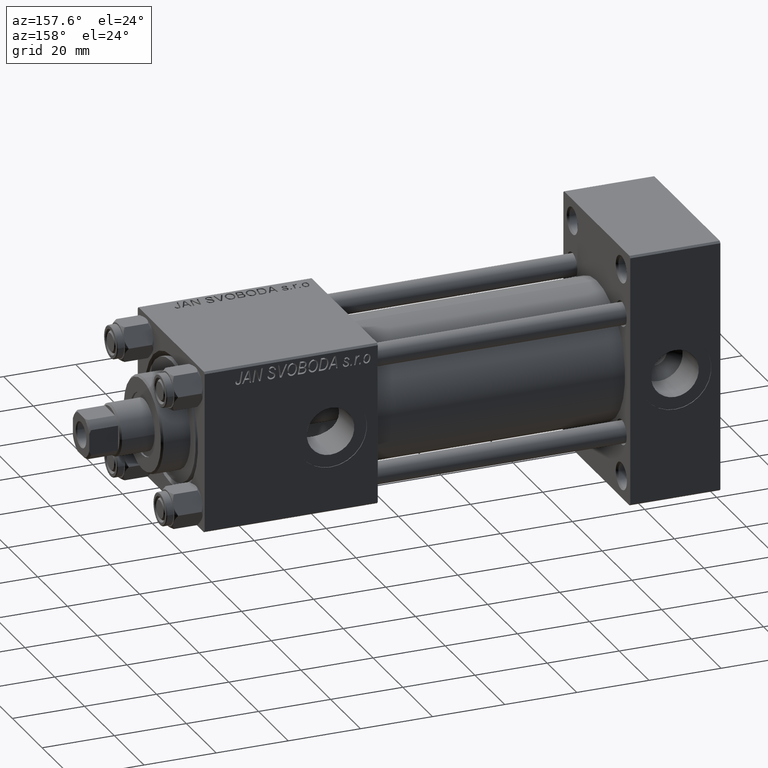
[diagram: clean part render]
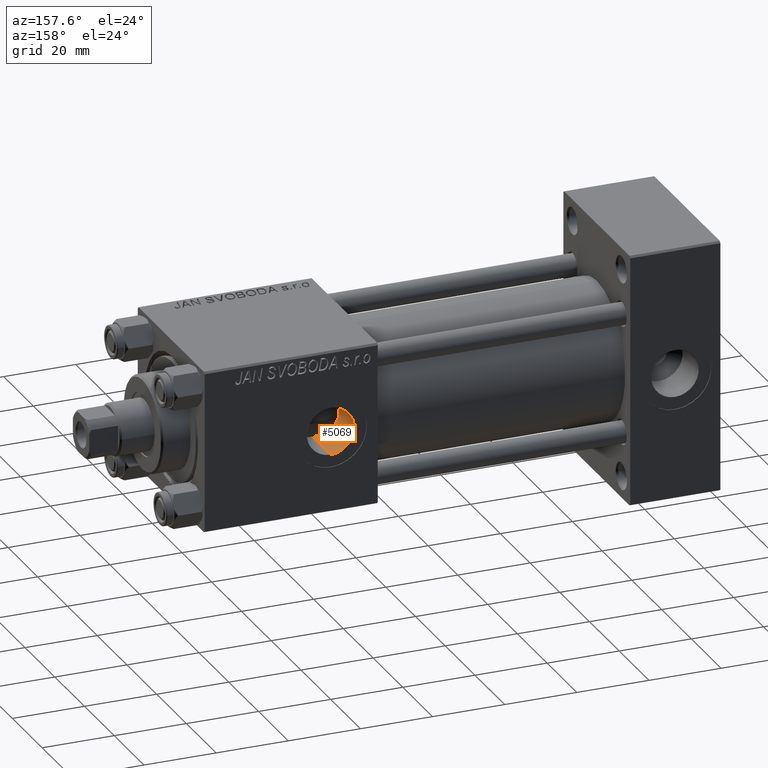
[diagram: same view with one face highlighted and labeled with its STEP entity id]
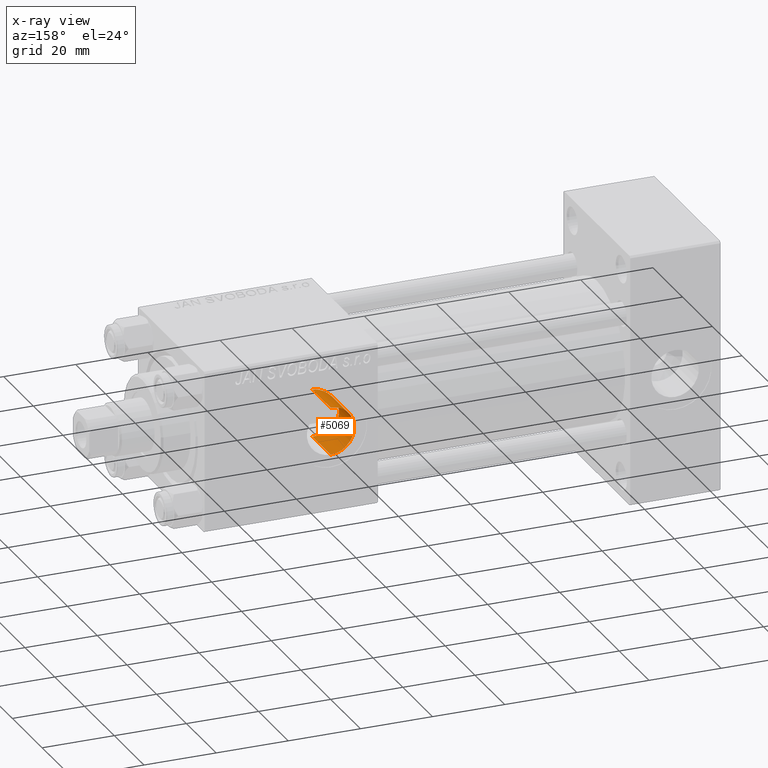
[diagram: x-ray of the same camera — body ghosted, the highlighted face saturated]
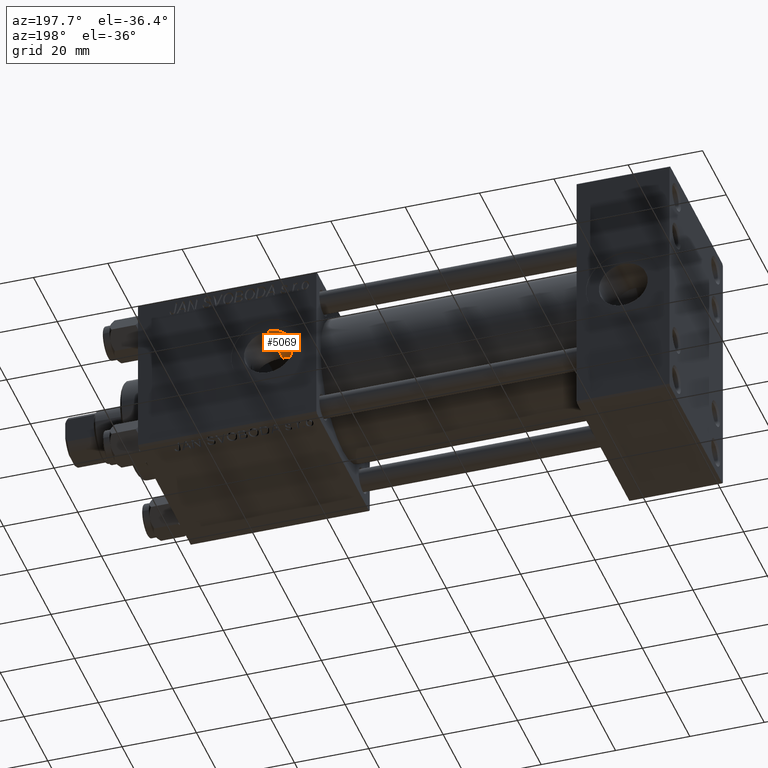
[diagram: same view with one face highlighted and labeled with its STEP entity id]
A machine part, auxiliary view. The second image highlights one B-rep face of the part: STEP entity #5069.
The next image is the same camera in x-ray: the body ghosted, the highlighted face saturated — about 0% of this face is hidden behind the body in this view.
A second angle (auxiliary view) of the same face is appended — the face is thin or edge-on in the first view.
In plain terms, the highlighted cylindrical surface (edge-blend (fillet) strip) has radius 6.58 mm, axis along (0, 1, 0).
Its self-contained STEP definition (entity closure, byte-faithful):
#1554 = LINE ( 'NONE', #16983, #33568 ) ;
#3036 = CARTESIAN_POINT ( 'NONE',  ( 103.9790530252927425, 10.80966661710888133, -5.212788743056521845 ) ) ;
#3276 = CARTESIAN_POINT ( 'NONE',  ( 105.0510431280197707, 10.45235325324470388, -5.897951781794918524 ) ) ;
#3513 = CARTESIAN_POINT ( 'NONE',  ( 102.3033527628750932, 11.53738015798572114, -3.320885605816854103 ) ) ;
#3527 = B_SPLINE_CURVE_WITH_KNOTS ( 'NONE', 3,
 ( #30811, #46185, #14642, #26287, #11333, #19425, #30070, #45452, #18928, #3276, #7560, #22729, #3036, #22977, #7314, #38142, #18681, #3513, #34353, #34104, #49742, #22491, #26768, #15140, #30569, #11581, #27022, #38391, #41684, #7813, #3760, #18442, #45697, #11094, #19173, #7073, #34602, #4009, #45937, #37900, #49494, #26526, #38634, #33296 ),
 .UNSPECIFIED., .F., .F.,
 ( 4, 2, 2, 2, 2, 2, 2, 2, 2, 2, 2, 2, 2, 2, 2, 2, 2, 2, 2, 2, 2, 4 ),
 ( 0.008590357070326631525, 0.009245933823934588541, 0.009901510577542547292, 0.01055708733115050431, 0.01121266408475846132, 0.01252381759197441352, 0.01317939434558237401, 0.01383497109919033449, 0.01514612460640625199, 0.01645727811362217297, 0.01711285486723013172, 0.01776843162083809047, 0.01907958512805401491, 0.02039073863526993241, 0.02170189214248585338, 0.02301304564970177435, 0.02432419915691769186, 0.02563535266413361630, 0.02629092941774158892, 0.02694650617134956155, 0.02825765967856552069, 0.02956881318578147289 ),
 .UNSPECIFIED. ) ;
#3760 = CARTESIAN_POINT ( 'NONE',  ( 102.3095047893206697, 11.53436838845257917, 3.330952691599677884 ) ) ;
#4009 = CARTESIAN_POINT ( 'NONE',  ( 105.0690707820880618, 10.45284026323419191, 5.895033264191283706 ) ) ;
#5069 = ADVANCED_FACE ( 'NONE', ( #9681 ), #25097, .F. ) ;
#5418 = CARTESIAN_POINT ( 'NONE',  ( 108.0000000000000000, 22.30000000000000426, 0.000000000000000000 ) ) ;
#5976 = VERTEX_POINT ( 'NONE', #13403 ) ;
#7073 = CARTESIAN_POINT ( 'NONE',  ( 104.5099310316933554, 10.62340520694157497, 5.582197786858912103 ) ) ;
#7314 = CARTESIAN_POINT ( 'NONE',  ( 103.4966336964842952, 10.99844243115061460, -4.802106935643950081 ) ) ;
#7533 = ORIENTED_EDGE ( 'NONE', *, *, #40405, .F. ) ;
#7560 = CARTESIAN_POINT ( 'NONE',  ( 104.6778844470711789, 10.56555453414760493, -5.695588259402676101 ) ) ;
#7769 = LINE ( 'NONE', #27476, #35109 ) ;
#7813 = CARTESIAN_POINT ( 'NONE',  ( 102.1050680583519039, 11.63756389590208862, 2.955633420251075894 ) ) ;
#9681 = FACE_OUTER_BOUND ( 'NONE', #34415, .T. ) ;
#11094 = CARTESIAN_POINT ( 'NONE',  ( 103.6562621565031890, 10.93152481304933765, 4.960425101894940347 ) ) ;
#11333 = CARTESIAN_POINT ( 'NONE',  ( 106.9026555007573904, 10.09272257990949839, -6.491501553408994596 ) ) ;
#11581 = CARTESIAN_POINT ( 'NONE',  ( 101.4197906521533241, 12.00011479239335088, 0.4352007943146000701 ) ) ;
#12428 = ORIENTED_EDGE ( 'NONE', *, *, #41667, .T. ) ;
#13403 = CARTESIAN_POINT ( 'NONE',  ( 108.0000000000000000, 22.30000000000000426, 6.580000000000002736 ) ) ;
#13989 = DIRECTION ( 'NONE',  ( 0.000000000000000000, 1.000000000000000000, 0.000000000000000000 ) ) ;
#14642 = CARTESIAN_POINT ( 'NONE',  ( 107.5587345323282449, 10.04242014431498475, -6.568903955922261062 ) ) ;
#15140 = CARTESIAN_POINT ( 'NONE',  ( 101.4637862416631293, 11.97582117318680162, -0.8761294634005413196 ) ) ;
#15582 = DIRECTION ( 'NONE',  ( -0.000000000000000000, 1.000000000000000000, -0.000000000000000000 ) ) ;
#16983 = CARTESIAN_POINT ( 'NONE',  ( 108.0000000000000000, -18.61105048082993818, 6.580000000000002736 ) ) ;
#17518 = DIRECTION ( 'NONE',  ( -0.000000000000000000, 1.000000000000000000, -0.000000000000000000 ) ) ;
#18442 = CARTESIAN_POINT ( 'NONE',  ( 102.7852272363605977, 11.30724428648134428, 4.035235631291475222 ) ) ;
#18681 = CARTESIAN_POINT ( 'NONE',  ( 102.7822453497095125, 11.30859472950852584, -4.031762314489304444 ) ) ;
#18835 = EDGE_CURVE ( 'NONE', #48883, #5976, #34173, .T. ) ;
#18928 = CARTESIAN_POINT ( 'NONE',  ( 105.6469863642564491, 10.30549409996672239, -6.148672400876415089 ) ) ;
#19173 = CARTESIAN_POINT ( 'NONE',  ( 103.9808194095023595, 10.80498217344098855, 5.227144681522187142 ) ) ;
#19425 = CARTESIAN_POINT ( 'NONE',  ( 106.4761413384147914, 10.14795690498758773, -6.404811640278047058 ) ) ;
#21593 = DIRECTION ( 'NONE',  ( 0.000000000000000000, 0.000000000000000000, 1.000000000000000000 ) ) ;
#22491 = CARTESIAN_POINT ( 'NONE',  ( 101.6495807290173019, 11.87554090734247758, -1.736573327823575985 ) ) ;
#22729 = CARTESIAN_POINT ( 'NONE',  ( 104.1502487701440600, 10.74694874131891353, -5.340483106436813898 ) ) ;
#22760 = VERTEX_POINT ( 'NONE', #44982 ) ;
#22818 = ORIENTED_EDGE ( 'NONE', *, *, #18835, .T. ) ;
#22977 = CARTESIAN_POINT ( 'NONE',  ( 103.6524179147616991, 10.93537140601615576, -4.943653615015846547 ) ) ;
#24891 = ORIENTED_EDGE ( 'NONE', *, *, #32196, .F. ) ;
#24984 = CARTESIAN_POINT ( 'NONE',  ( 108.0000000000000000, 22.30000000000000426, -6.580000000000002736 ) ) ;
#25097 = CYLINDRICAL_SURFACE ( 'NONE', #26580, 6.580000000000002736 ) ;
#26287 = CARTESIAN_POINT ( 'NONE',  ( 107.1190907691257337, 10.07132008303893400, -6.524508665183240907 ) ) ;
#26526 = CARTESIAN_POINT ( 'NONE',  ( 107.1257057613068895, 10.06401201544136903, 6.536546467569312568 ) ) ;
#26580 = AXIS2_PLACEMENT_3D ( 'NONE', #40506, #17518, #48318 ) ;
#26768 = CARTESIAN_POINT ( 'NONE',  ( 101.5947815601323043, 11.90500205299394310, -1.522465113034440432 ) ) ;
#27022 = CARTESIAN_POINT ( 'NONE',  ( 101.4646913180390442, 11.97532927873728958, 0.8814389111818397016 ) ) ;
#27476 = CARTESIAN_POINT ( 'NONE',  ( 108.0000000000000000, -18.61105048082993818, -6.580000000000002736 ) ) ;
#30070 = CARTESIAN_POINT ( 'NONE',  ( 106.2660629811777540, 10.18178878898818596, -6.351126472267992540 ) ) ;
#30569 = CARTESIAN_POINT ( 'NONE',  ( 101.4202108594641345, 11.99988437873642511, -0.4415083905740621595 ) ) ;
#30811 = CARTESIAN_POINT ( 'NONE',  ( 108.0000000000000000, 10.03511833512689755, -6.580000000000002736 ) ) ;
#32196 = EDGE_CURVE ( 'NONE', #37395, #22760, #3527, .T. ) ;
#33296 = CARTESIAN_POINT ( 'NONE',  ( 108.0000000000000000, 10.03511833512689755, 6.580000000000002736 ) ) ;
#33568 = VECTOR ( 'NONE', #47780, 1000.000000000000000 ) ;
#34104 = CARTESIAN_POINT ( 'NONE',  ( 101.8515536459367183, 11.76868526175016250, -2.353465099783908610 ) ) ;
#34173 = CIRCLE ( 'NONE', #43823, 6.580000000000002736 ) ;
#34353 = CARTESIAN_POINT ( 'NONE',  ( 102.1004084834657846, 11.63995794439685483, -2.945230401312897150 ) ) ;
#34415 = EDGE_LOOP ( 'NONE', ( #24891, #12428, #22818, #7533 ) ) ;
#34602 = CARTESIAN_POINT ( 'NONE',  ( 104.6939754610107371, 10.56415267499855304, 5.693150710628732014 ) ) ;
#35109 = VECTOR ( 'NONE', #15582, 1000.000000000000000 ) ;
#37395 = VERTEX_POINT ( 'NONE', #39928 ) ;
#37900 = CARTESIAN_POINT ( 'NONE',  ( 105.8504201772063880, 10.25569107496388987, 6.233555566934210646 ) ) ;
#38142 = CARTESIAN_POINT ( 'NONE',  ( 103.0508812765204851, 11.18591469348257306, -4.356510094204550043 ) ) ;
#38391 = CARTESIAN_POINT ( 'NONE',  ( 101.6385484795074206, 11.88134324111738493, 1.737564006038945452 ) ) ;
#38634 = CARTESIAN_POINT ( 'NONE',  ( 107.5626811284030850, 10.03511833512689400, 6.579999999999999183 ) ) ;
#39928 = CARTESIAN_POINT ( 'NONE',  ( 108.0000000000000000, 10.03511833512689755, -6.580000000000002736 ) ) ;
#40405 = EDGE_CURVE ( 'NONE', #22760, #5976, #1554, .T. ) ;
#40506 = CARTESIAN_POINT ( 'NONE',  ( 108.0000000000000000, -18.61105048082993818, 0.000000000000000000 ) ) ;
#41667 = EDGE_CURVE ( 'NONE', #37395, #48883, #7769, .T. ) ;
#41684 = CARTESIAN_POINT ( 'NONE',  ( 101.7670065677870355, 11.81240356407410275, 2.153087175559377453 ) ) ;
#43823 = AXIS2_PLACEMENT_3D ( 'NONE', #5418, #13989, #21593 ) ;
#44982 = CARTESIAN_POINT ( 'NONE',  ( 108.0000000000000000, 10.03511833512689755, 6.580000000000002736 ) ) ;
#45452 = CARTESIAN_POINT ( 'NONE',  ( 105.8520087302309065, 10.26041674852086949, -6.223301258735684627 ) ) ;
#45697 = CARTESIAN_POINT ( 'NONE',  ( 103.0591469749664526, 11.18222718872542920, 4.365987520544764244 ) ) ;
#45937 = CARTESIAN_POINT ( 'NONE',  ( 105.2609984649942874, 10.40045460118916054, 5.986622394672212799 ) ) ;
#46185 = CARTESIAN_POINT ( 'NONE',  ( 107.7808140535749288, 10.03511833512689400, -6.580000000000003624 ) ) ;
#47780 = DIRECTION ( 'NONE',  ( -0.000000000000000000, 1.000000000000000000, -0.000000000000000000 ) ) ;
#48318 = DIRECTION ( 'NONE',  ( 0.000000000000000000, 0.000000000000000000, 1.000000000000000000 ) ) ;
#48883 = VERTEX_POINT ( 'NONE', #24984 ) ;
#49494 = CARTESIAN_POINT ( 'NONE',  ( 106.2613787208470200, 10.17559587363118112, 6.361448434608369062 ) ) ;
#49742 = CARTESIAN_POINT ( 'NONE',  ( 101.7778289807484100, 11.80745777538545482, -2.151301849430347080 ) ) ;